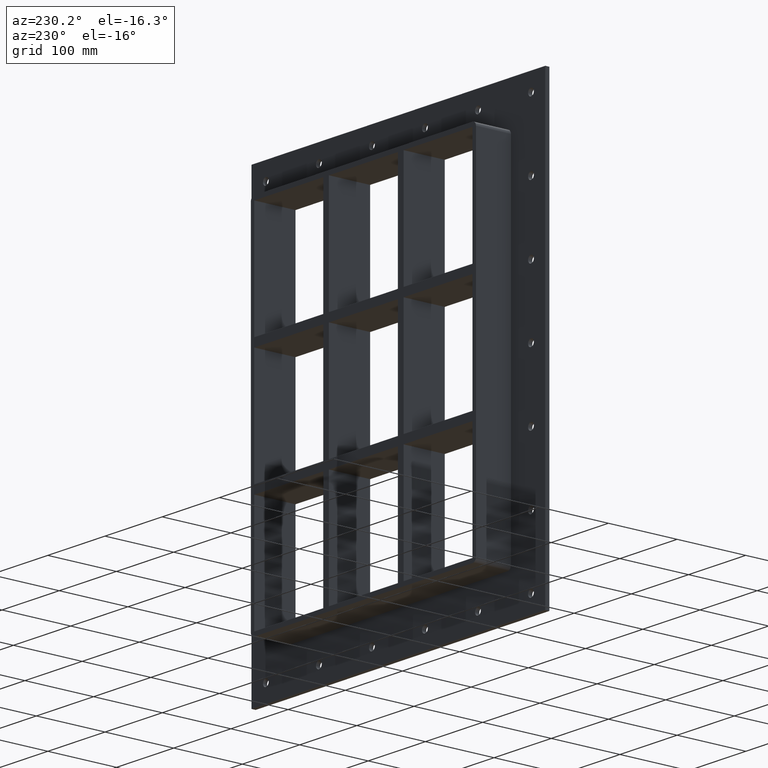
[diagram: clean part render]
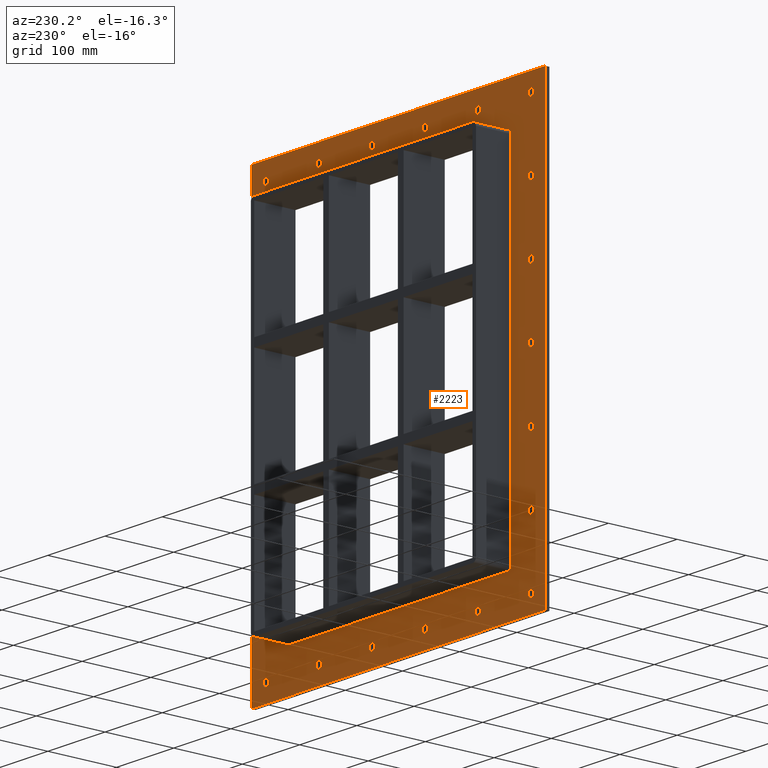
[diagram: same view with one face highlighted and labeled with its STEP entity id]
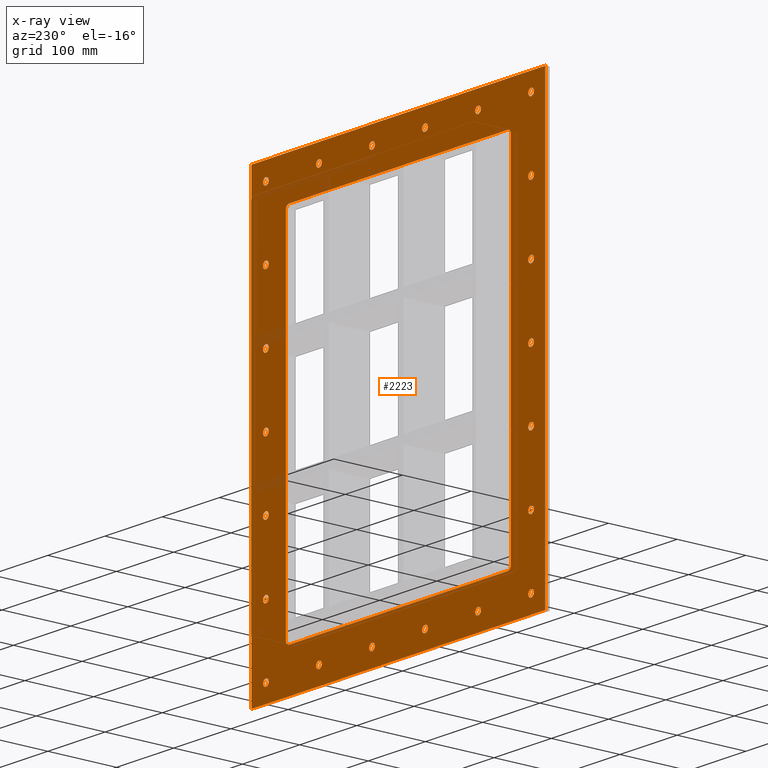
[diagram: x-ray of the same camera — body ghosted, the highlighted face saturated]
A machine part, auxiliary view. The second image highlights one B-rep face of the part: STEP entity #2223.
The next image is the same camera in x-ray: the body ghosted, the highlighted face saturated — about 6% of this face is hidden behind the body in this view.
In plain terms, the highlighted planar face has unit normal (0, 1, 0).
Its self-contained STEP definition (entity closure, byte-faithful):
#73=CARTESIAN_POINT('',(-236.75000000000006,5.999999999999943,-292.24999999999994));
#74=VERTEX_POINT('',#73);
#75=CARTESIAN_POINT('',(-231.75000000000006,5.999999999999943,-292.24999999999994));
#76=DIRECTION('',(0.0,-1.0,0.0));
#77=DIRECTION('',(1.0,0.0,0.0));
#78=AXIS2_PLACEMENT_3D('',#75,#76,#77);
#79=CIRCLE('',#78,5.0);
#80=EDGE_CURVE('',#74,#74,#79,.T.);
#101=CARTESIAN_POINT('',(226.75000000000006,5.999999999999943,-194.8299999999999));
#102=VERTEX_POINT('',#101);
#103=CARTESIAN_POINT('',(231.75000000000006,5.999999999999943,-194.8299999999999));
#104=DIRECTION('',(0.0,-1.0,0.0));
#105=DIRECTION('',(1.0,0.0,0.0));
#106=AXIS2_PLACEMENT_3D('',#103,#104,#105);
#107=CIRCLE('',#106,5.0);
#108=EDGE_CURVE('',#102,#102,#107,.T.);
#129=CARTESIAN_POINT('',(-236.75000000000006,5.999999999999943,-194.8299999999999));
#130=VERTEX_POINT('',#129);
#131=CARTESIAN_POINT('',(-231.75000000000006,5.999999999999943,-194.8299999999999));
#132=DIRECTION('',(0.0,-1.0,0.0));
#133=DIRECTION('',(1.0,0.0,0.0));
#134=AXIS2_PLACEMENT_3D('',#131,#132,#133);
#135=CIRCLE('',#134,5.0);
#136=EDGE_CURVE('',#130,#130,#135,.T.);
#157=CARTESIAN_POINT('',(226.75000000000006,5.999999999999943,-97.409999999999883));
#158=VERTEX_POINT('',#157);
#159=CARTESIAN_POINT('',(231.75000000000006,5.999999999999943,-97.409999999999883));
#160=DIRECTION('',(0.0,-1.0,0.0));
#161=DIRECTION('',(1.0,0.0,0.0));
#162=AXIS2_PLACEMENT_3D('',#159,#160,#161);
#163=CIRCLE('',#162,5.0);
#164=EDGE_CURVE('',#158,#158,#163,.T.);
#185=CARTESIAN_POINT('',(-236.75000000000006,5.999999999999943,-97.409999999999883));
#186=VERTEX_POINT('',#185);
#187=CARTESIAN_POINT('',(-231.75000000000006,5.999999999999943,-97.409999999999883));
#188=DIRECTION('',(0.0,-1.0,0.0));
#189=DIRECTION('',(1.0,0.0,0.0));
#190=AXIS2_PLACEMENT_3D('',#187,#188,#189);
#191=CIRCLE('',#190,5.0);
#192=EDGE_CURVE('',#186,#186,#191,.T.);
#213=CARTESIAN_POINT('',(226.75000000000006,5.999999999999943,0.010000000000119));
#214=VERTEX_POINT('',#213);
#215=CARTESIAN_POINT('',(231.75000000000006,5.999999999999943,0.010000000000119));
#216=DIRECTION('',(0.0,-1.0,0.0));
#217=DIRECTION('',(1.0,0.0,0.0));
#218=AXIS2_PLACEMENT_3D('',#215,#216,#217);
#219=CIRCLE('',#218,5.0);
#220=EDGE_CURVE('',#214,#214,#219,.T.);
#241=CARTESIAN_POINT('',(-236.75000000000006,5.999999999999943,0.010000000000119));
#242=VERTEX_POINT('',#241);
#243=CARTESIAN_POINT('',(-231.75000000000006,5.999999999999943,0.010000000000119));
#244=DIRECTION('',(0.0,-1.0,0.0));
#245=DIRECTION('',(1.0,0.0,0.0));
#246=AXIS2_PLACEMENT_3D('',#243,#244,#245);
#247=CIRCLE('',#246,5.0);
#248=EDGE_CURVE('',#242,#242,#247,.T.);
#269=CARTESIAN_POINT('',(226.75000000000006,5.999999999999943,97.430000000000121));
#270=VERTEX_POINT('',#269);
#271=CARTESIAN_POINT('',(231.75000000000006,5.999999999999943,97.430000000000121));
#272=DIRECTION('',(0.0,-1.0,0.0));
#273=DIRECTION('',(1.0,0.0,0.0));
#274=AXIS2_PLACEMENT_3D('',#271,#272,#273);
#275=CIRCLE('',#274,5.0);
#276=EDGE_CURVE('',#270,#270,#275,.T.);
#297=CARTESIAN_POINT('',(-236.75000000000006,5.999999999999943,97.430000000000121));
#298=VERTEX_POINT('',#297);
#299=CARTESIAN_POINT('',(-231.75000000000006,5.999999999999943,97.430000000000121));
#300=DIRECTION('',(0.0,-1.0,0.0));
#301=DIRECTION('',(1.0,0.0,0.0));
#302=AXIS2_PLACEMENT_3D('',#299,#300,#301);
#303=CIRCLE('',#302,5.0);
#304=EDGE_CURVE('',#298,#298,#303,.T.);
#325=CARTESIAN_POINT('',(226.75000000000006,5.999999999999943,194.85000000000014));
#326=VERTEX_POINT('',#325);
#327=CARTESIAN_POINT('',(231.75000000000006,5.999999999999943,194.85000000000014));
#328=DIRECTION('',(0.0,-1.0,0.0));
#329=DIRECTION('',(1.0,0.0,0.0));
#330=AXIS2_PLACEMENT_3D('',#327,#328,#329);
#331=CIRCLE('',#330,5.0);
#332=EDGE_CURVE('',#326,#326,#331,.T.);
#353=CARTESIAN_POINT('',(-236.75000000000006,5.999999999999943,194.85000000000014));
#354=VERTEX_POINT('',#353);
#355=CARTESIAN_POINT('',(-231.75000000000006,5.999999999999943,194.85000000000014));
#356=DIRECTION('',(0.0,-1.0,0.0));
#357=DIRECTION('',(1.0,0.0,0.0));
#358=AXIS2_PLACEMENT_3D('',#355,#356,#357);
#359=CIRCLE('',#358,5.0);
#360=EDGE_CURVE('',#354,#354,#359,.T.);
#381=CARTESIAN_POINT('',(-144.04999999999998,5.999999999999943,292.27000000000015));
#382=VERTEX_POINT('',#381);
#383=CARTESIAN_POINT('',(-139.04999999999998,5.999999999999943,292.27000000000015));
#384=DIRECTION('',(0.0,-1.0,0.0));
#385=DIRECTION('',(1.0,0.0,0.0));
#386=AXIS2_PLACEMENT_3D('',#383,#384,#385);
#387=CIRCLE('',#386,5.0);
#388=EDGE_CURVE('',#382,#382,#387,.T.);
#409=CARTESIAN_POINT('',(-144.04999999999998,5.999999999999943,-292.24999999999994));
#410=VERTEX_POINT('',#409);
#411=CARTESIAN_POINT('',(-139.04999999999998,5.999999999999943,-292.24999999999994));
#412=DIRECTION('',(0.0,-1.0,0.0));
#413=DIRECTION('',(1.0,0.0,0.0));
#414=AXIS2_PLACEMENT_3D('',#411,#412,#413);
#415=CIRCLE('',#414,5.0);
#416=EDGE_CURVE('',#410,#410,#415,.T.);
#437=CARTESIAN_POINT('',(-51.349999999999966,5.999999999999943,292.27000000000015));
#438=VERTEX_POINT('',#437);
#439=CARTESIAN_POINT('',(-46.349999999999966,5.999999999999943,292.27000000000015));
#440=DIRECTION('',(0.0,-1.0,0.0));
#441=DIRECTION('',(1.0,0.0,0.0));
#442=AXIS2_PLACEMENT_3D('',#439,#440,#441);
#443=CIRCLE('',#442,5.0);
#444=EDGE_CURVE('',#438,#438,#443,.T.);
#465=CARTESIAN_POINT('',(-51.349999999999966,5.999999999999943,-292.24999999999994));
#466=VERTEX_POINT('',#465);
#467=CARTESIAN_POINT('',(-46.349999999999966,5.999999999999943,-292.24999999999994));
#468=DIRECTION('',(0.0,-1.0,0.0));
#469=DIRECTION('',(1.0,0.0,0.0));
#470=AXIS2_PLACEMENT_3D('',#467,#468,#469);
#471=CIRCLE('',#470,5.0);
#472=EDGE_CURVE('',#466,#466,#471,.T.);
#493=CARTESIAN_POINT('',(41.350000000000016,5.999999999999943,292.27000000000015));
#494=VERTEX_POINT('',#493);
#495=CARTESIAN_POINT('',(46.350000000000016,5.999999999999943,292.27000000000015));
#496=DIRECTION('',(0.0,-1.0,0.0));
#497=DIRECTION('',(1.0,0.0,0.0));
#498=AXIS2_PLACEMENT_3D('',#495,#496,#497);
#499=CIRCLE('',#498,5.0);
#500=EDGE_CURVE('',#494,#494,#499,.T.);
#521=CARTESIAN_POINT('',(41.350000000000016,5.999999999999943,-292.24999999999994));
#522=VERTEX_POINT('',#521);
#523=CARTESIAN_POINT('',(46.350000000000016,5.999999999999943,-292.24999999999994));
#524=DIRECTION('',(0.0,-1.0,0.0));
#525=DIRECTION('',(1.0,0.0,0.0));
#526=AXIS2_PLACEMENT_3D('',#523,#524,#525);
#527=CIRCLE('',#526,5.0);
#528=EDGE_CURVE('',#522,#522,#527,.T.);
#549=CARTESIAN_POINT('',(134.05000000000004,5.999999999999943,292.27000000000015));
#550=VERTEX_POINT('',#549);
#551=CARTESIAN_POINT('',(139.05000000000004,5.999999999999943,292.27000000000015));
#552=DIRECTION('',(0.0,-1.0,0.0));
#553=DIRECTION('',(1.0,0.0,0.0));
#554=AXIS2_PLACEMENT_3D('',#551,#552,#553);
#555=CIRCLE('',#554,5.0);
#556=EDGE_CURVE('',#550,#550,#555,.T.);
#577=CARTESIAN_POINT('',(134.05000000000004,5.999999999999943,-292.24999999999994));
#578=VERTEX_POINT('',#577);
#579=CARTESIAN_POINT('',(139.05000000000004,5.999999999999943,-292.24999999999994));
#580=DIRECTION('',(0.0,-1.0,0.0));
#581=DIRECTION('',(1.0,0.0,0.0));
#582=AXIS2_PLACEMENT_3D('',#579,#580,#581);
#583=CIRCLE('',#582,5.0);
#584=EDGE_CURVE('',#578,#578,#583,.T.);
#605=CARTESIAN_POINT('',(226.75000000000006,5.999999999999943,-292.24999999999994));
#606=VERTEX_POINT('',#605);
#607=CARTESIAN_POINT('',(231.75000000000006,5.999999999999943,-292.24999999999994));
#608=DIRECTION('',(0.0,-1.0,0.0));
#609=DIRECTION('',(1.0,0.0,0.0));
#610=AXIS2_PLACEMENT_3D('',#607,#608,#609);
#611=CIRCLE('',#610,5.0);
#612=EDGE_CURVE('',#606,#606,#611,.T.);
#633=CARTESIAN_POINT('',(-236.75000000000006,5.999999999999943,292.27000000000015));
#634=VERTEX_POINT('',#633);
#635=CARTESIAN_POINT('',(-231.75000000000006,5.999999999999943,292.27000000000015));
#636=DIRECTION('',(0.0,-1.0,0.0));
#637=DIRECTION('',(1.0,0.0,0.0));
#638=AXIS2_PLACEMENT_3D('',#635,#636,#637);
#639=CIRCLE('',#638,5.0);
#640=EDGE_CURVE('',#634,#634,#639,.T.);
#661=CARTESIAN_POINT('',(226.75000000000006,5.999999999999943,292.27000000000015));
#662=VERTEX_POINT('',#661);
#663=CARTESIAN_POINT('',(231.75000000000006,5.999999999999943,292.27000000000015));
#664=DIRECTION('',(0.0,-1.0,0.0));
#665=DIRECTION('',(1.0,0.0,0.0));
#666=AXIS2_PLACEMENT_3D('',#663,#664,#665);
#667=CIRCLE('',#666,5.0);
#668=EDGE_CURVE('',#662,#662,#667,.T.);
#2048=CARTESIAN_POINT('',(2.970910E-014,6.000000000000001,5.438159E-014));
#2049=DIRECTION('',(0.0,1.0,0.0));
#2050=DIRECTION('',(0.0,0.0,1.0));
#2051=AXIS2_PLACEMENT_3D('',#2048,#2049,#2050);
#2052=PLANE('',#2051);
#2053=CARTESIAN_POINT('',(-256.75,6.000000000000001,317.25));
#2054=VERTEX_POINT('',#2053);
#2055=CARTESIAN_POINT('',(256.75,6.000000000000001,317.25));
#2056=VERTEX_POINT('',#2055);
#2057=CARTESIAN_POINT('',(-256.75,6.000000000000001,317.25));
#2058=DIRECTION('',(1.0,0.0,0.0));
#2059=VECTOR('',#2058,513.5);
#2060=LINE('',#2057,#2059);
#2061=EDGE_CURVE('',#2054,#2056,#2060,.T.);
#2062=ORIENTED_EDGE('',*,*,#2061,.T.);
#2063=CARTESIAN_POINT('',(256.75,6.000000000000001,-317.24999999999994));
#2064=VERTEX_POINT('',#2063);
#2065=CARTESIAN_POINT('',(256.75,6.000000000000001,317.25));
#2066=DIRECTION('',(0.0,0.0,-1.0));
#2067=VECTOR('',#2066,634.5);
#2068=LINE('',#2065,#2067);
#2069=EDGE_CURVE('',#2056,#2064,#2068,.T.);
#2070=ORIENTED_EDGE('',*,*,#2069,.T.);
#2071=CARTESIAN_POINT('',(-256.75,6.000000000000001,-317.24999999999994));
#2072=VERTEX_POINT('',#2071);
#2073=CARTESIAN_POINT('',(256.75,6.000000000000001,-317.24999999999994));
#2074=DIRECTION('',(-1.0,0.0,0.0));
#2075=VECTOR('',#2074,513.5);
#2076=LINE('',#2073,#2075);
#2077=EDGE_CURVE('',#2064,#2072,#2076,.T.);
#2078=ORIENTED_EDGE('',*,*,#2077,.T.);
#2079=CARTESIAN_POINT('',(-256.75,6.000000000000001,-317.24999999999994));
#2080=DIRECTION('',(0.0,0.0,1.0));
#2081=VECTOR('',#2080,634.5);
#2082=LINE('',#2079,#2081);
#2083=EDGE_CURVE('',#2072,#2054,#2082,.T.);
#2084=ORIENTED_EDGE('',*,*,#2083,.T.);
#2085=EDGE_LOOP('',(#2062,#2070,#2078,#2084));
#2086=FACE_OUTER_BOUND('',#2085,.T.);
#2087=ORIENTED_EDGE('',*,*,#80,.T.);
#2088=EDGE_LOOP('',(#2087));
#2089=FACE_BOUND('',#2088,.T.);
#2090=ORIENTED_EDGE('',*,*,#108,.T.);
#2091=EDGE_LOOP('',(#2090));
#2092=FACE_BOUND('',#2091,.T.);
#2093=ORIENTED_EDGE('',*,*,#136,.T.);
#2094=EDGE_LOOP('',(#2093));
#2095=FACE_BOUND('',#2094,.T.);
#2096=ORIENTED_EDGE('',*,*,#164,.T.);
#2097=EDGE_LOOP('',(#2096));
#2098=FACE_BOUND('',#2097,.T.);
#2099=ORIENTED_EDGE('',*,*,#192,.T.);
#2100=EDGE_LOOP('',(#2099));
#2101=FACE_BOUND('',#2100,.T.);
#2102=ORIENTED_EDGE('',*,*,#220,.T.);
#2103=EDGE_LOOP('',(#2102));
#2104=FACE_BOUND('',#2103,.T.);
#2105=ORIENTED_EDGE('',*,*,#248,.T.);
#2106=EDGE_LOOP('',(#2105));
#2107=FACE_BOUND('',#2106,.T.);
#2108=ORIENTED_EDGE('',*,*,#276,.T.);
#2109=EDGE_LOOP('',(#2108));
#2110=FACE_BOUND('',#2109,.T.);
#2111=ORIENTED_EDGE('',*,*,#304,.T.);
#2112=EDGE_LOOP('',(#2111));
#2113=FACE_BOUND('',#2112,.T.);
#2114=ORIENTED_EDGE('',*,*,#332,.T.);
#2115=EDGE_LOOP('',(#2114));
#2116=FACE_BOUND('',#2115,.T.);
#2117=ORIENTED_EDGE('',*,*,#360,.T.);
#2118=EDGE_LOOP('',(#2117));
#2119=FACE_BOUND('',#2118,.T.);
#2120=ORIENTED_EDGE('',*,*,#388,.T.);
#2121=EDGE_LOOP('',(#2120));
#2122=FACE_BOUND('',#2121,.T.);
#2123=ORIENTED_EDGE('',*,*,#416,.T.);
#2124=EDGE_LOOP('',(#2123));
#2125=FACE_BOUND('',#2124,.T.);
#2126=ORIENTED_EDGE('',*,*,#444,.T.);
#2127=EDGE_LOOP('',(#2126));
#2128=FACE_BOUND('',#2127,.T.);
#2129=ORIENTED_EDGE('',*,*,#472,.T.);
#2130=EDGE_LOOP('',(#2129));
#2131=FACE_BOUND('',#2130,.T.);
#2132=ORIENTED_EDGE('',*,*,#500,.T.);
#2133=EDGE_LOOP('',(#2132));
#2134=FACE_BOUND('',#2133,.T.);
#2135=ORIENTED_EDGE('',*,*,#528,.T.);
#2136=EDGE_LOOP('',(#2135));
#2137=FACE_BOUND('',#2136,.T.);
#2138=ORIENTED_EDGE('',*,*,#556,.T.);
#2139=EDGE_LOOP('',(#2138));
#2140=FACE_BOUND('',#2139,.T.);
#2141=ORIENTED_EDGE('',*,*,#584,.T.);
#2142=EDGE_LOOP('',(#2141));
#2143=FACE_BOUND('',#2142,.T.);
#2144=ORIENTED_EDGE('',*,*,#612,.T.);
#2145=EDGE_LOOP('',(#2144));
#2146=FACE_BOUND('',#2145,.T.);
#2147=ORIENTED_EDGE('',*,*,#640,.T.);
#2148=EDGE_LOOP('',(#2147));
#2149=FACE_BOUND('',#2148,.T.);
#2150=ORIENTED_EDGE('',*,*,#668,.T.);
#2151=EDGE_LOOP('',(#2150));
#2152=FACE_BOUND('',#2151,.T.);
#2153=CARTESIAN_POINT('',(-190.75000000000003,6.000000000000001,-257.25));
#2154=VERTEX_POINT('',#2153);
#2155=CARTESIAN_POINT('',(-196.75000000000006,6.000000000000001,-251.25));
#2156=VERTEX_POINT('',#2155);
#2157=CARTESIAN_POINT('',(-190.75000000000003,6.000000000000001,-251.25));
#2158=DIRECTION('',(0.0,1.0,0.0));
#2159=DIRECTION('',(-0.707106781186548,0.0,-0.707106781186548));
#2160=AXIS2_PLACEMENT_3D('',#2157,#2158,#2159);
#2161=CIRCLE('',#2160,6.000000000000002);
#2162=EDGE_CURVE('',#2154,#2156,#2161,.T.);
#2163=ORIENTED_EDGE('',*,*,#2162,.F.);
#2164=CARTESIAN_POINT('',(190.75000000000003,6.000000000000001,-257.25));
#2165=VERTEX_POINT('',#2164);
#2166=CARTESIAN_POINT('',(190.75000000000003,6.000000000000001,-257.25));
#2167=DIRECTION('',(-1.0,0.0,0.0));
#2168=VECTOR('',#2167,381.50000000000011);
#2169=LINE('',#2166,#2168);
#2170=EDGE_CURVE('',#2165,#2154,#2169,.T.);
#2171=ORIENTED_EDGE('',*,*,#2170,.F.);
#2172=CARTESIAN_POINT('',(196.75000000000006,6.000000000000001,-251.25));
#2173=VERTEX_POINT('',#2172);
#2174=CARTESIAN_POINT('',(190.75000000000003,6.000000000000001,-251.25));
#2175=DIRECTION('',(0.0,1.0,0.0));
#2176=DIRECTION('',(0.707106781186548,0.0,-0.707106781186548));
#2177=AXIS2_PLACEMENT_3D('',#2174,#2175,#2176);
#2178=CIRCLE('',#2177,6.000000000000002);
#2179=EDGE_CURVE('',#2173,#2165,#2178,.T.);
#2180=ORIENTED_EDGE('',*,*,#2179,.F.);
#2181=CARTESIAN_POINT('',(196.75000000000006,6.000000000000001,251.25));
#2182=VERTEX_POINT('',#2181);
#2183=CARTESIAN_POINT('',(196.75000000000006,6.000000000000001,251.25));
#2184=DIRECTION('',(0.0,0.0,-1.0));
#2185=VECTOR('',#2184,502.5);
#2186=LINE('',#2183,#2185);
#2187=EDGE_CURVE('',#2182,#2173,#2186,.T.);
#2188=ORIENTED_EDGE('',*,*,#2187,.F.);
#2189=CARTESIAN_POINT('',(190.75000000000003,6.000000000000001,257.25));
#2190=VERTEX_POINT('',#2189);
#2191=CARTESIAN_POINT('',(190.75000000000003,6.000000000000001,251.25));
#2192=DIRECTION('',(0.0,1.0,0.0));
#2193=DIRECTION('',(0.707106781186548,0.0,0.707106781186548));
#2194=AXIS2_PLACEMENT_3D('',#2191,#2192,#2193);
#2195=CIRCLE('',#2194,6.000000000000002);
#2196=EDGE_CURVE('',#2190,#2182,#2195,.T.);
#2197=ORIENTED_EDGE('',*,*,#2196,.F.);
#2198=CARTESIAN_POINT('',(-190.75000000000003,6.000000000000001,257.25));
#2199=VERTEX_POINT('',#2198);
#2200=CARTESIAN_POINT('',(-190.75000000000003,6.000000000000001,257.25));
#2201=DIRECTION('',(1.0,0.0,0.0));
#2202=VECTOR('',#2201,381.5);
#2203=LINE('',#2200,#2202);
#2204=EDGE_CURVE('',#2199,#2190,#2203,.T.);
#2205=ORIENTED_EDGE('',*,*,#2204,.F.);
#2206=CARTESIAN_POINT('',(-196.75000000000006,6.000000000000001,251.25));
#2207=VERTEX_POINT('',#2206);
#2208=CARTESIAN_POINT('',(-190.75000000000003,6.000000000000001,251.25));
#2209=DIRECTION('',(0.0,1.0,0.0));
#2210=DIRECTION('',(-0.707106781186548,0.0,0.707106781186548));
#2211=AXIS2_PLACEMENT_3D('',#2208,#2209,#2210);
#2212=CIRCLE('',#2211,6.000000000000002);
#2213=EDGE_CURVE('',#2207,#2199,#2212,.T.);
#2214=ORIENTED_EDGE('',*,*,#2213,.F.);
#2215=CARTESIAN_POINT('',(-196.75000000000006,6.000000000000001,-251.25));
#2216=DIRECTION('',(0.0,0.0,1.0));
#2217=VECTOR('',#2216,502.5);
#2218=LINE('',#2215,#2217);
#2219=EDGE_CURVE('',#2156,#2207,#2218,.T.);
#2220=ORIENTED_EDGE('',*,*,#2219,.F.);
#2221=EDGE_LOOP('',(#2163,#2171,#2180,#2188,#2197,#2205,#2214,#2220));
#2222=FACE_BOUND('',#2221,.T.);
#2223=ADVANCED_FACE('',(#2086,#2089,#2092,#2095,#2098,#2101,#2104,#2107,#2110,#2113,#2116,#2119,#2122,#2125,#2128,#2131,#2134,#2137,#2140,#2143,#2146,#2149,#2152,#2222),#2052,.T.);